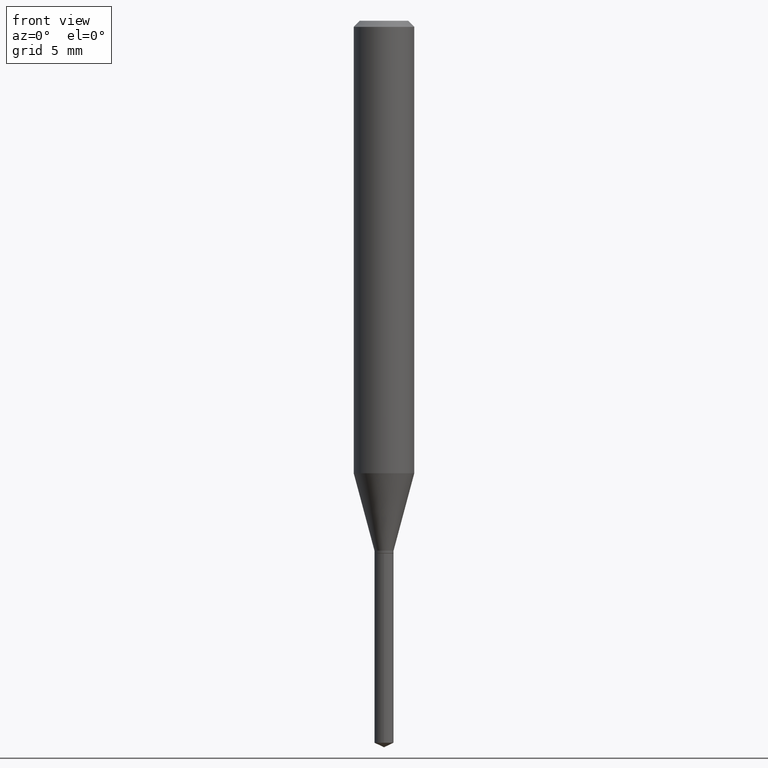
[diagram: clean part render]
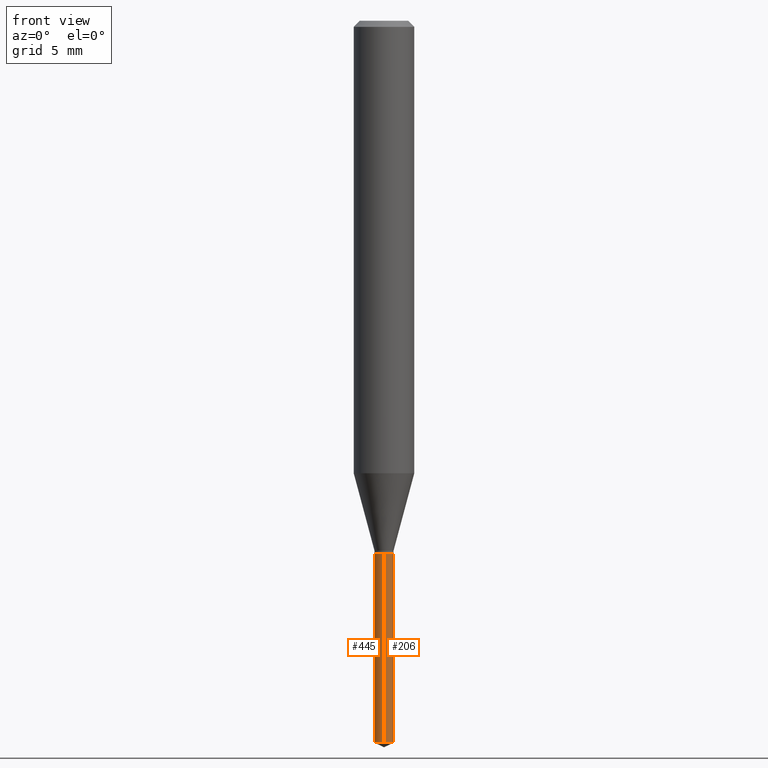
[diagram: same view with one multi-face feature highlighted, each face labeled with its STEP entity id]
A machine part, front view. The highlighted faces form ONE feature: a constant-radius fillet chain: 2 tangent blend faces with common blend radius 0.5004 mm. The faces share edges in the B-rep.
Their STEP definitions:
[1] entity #445 (Cylinder):
#2 = CIRCLE ( 'NONE', #381, 0.01969999999999999876 ) ;
#7 = VECTOR ( 'NONE', #107, 39.37007874015748143 ) ;
#12 = ORIENTED_EDGE ( 'NONE', *, *, #383, .F. ) ;
#25 = ORIENTED_EDGE ( 'NONE', *, *, #59, .T. ) ;
#45 = CARTESIAN_POINT ( 'NONE',  ( 1.399769189447762373E-16, 0.01969999999999615461, -1.100000000000000089 ) ) ;
#59 = EDGE_CURVE ( 'NONE', #86, #122, #2, .T. ) ;
#75 = CARTESIAN_POINT ( 'NONE',  ( 3.645711483492757860E-29, -5.205187031730015573E-15, -1.490813739134346783 ) ) ;
#86 = VERTEX_POINT ( 'NONE', #144 ) ;
#105 = DIRECTION ( 'NONE',  ( -6.982962677686265133E-15, -1.000000000000000000, 6.933624349401683764E-15 ) ) ;
#107 = DIRECTION ( 'NONE',  ( -2.445399690415121810E-29, 3.491580316559632610E-15, 1.000000000000000000 ) ) ;
#122 = VERTEX_POINT ( 'NONE', #275 ) ;
#142 = CARTESIAN_POINT ( 'NONE',  ( 2.690015686803650369E-29, -3.840629472727460101E-15, -1.100000000000000089 ) ) ;
#144 = CARTESIAN_POINT ( 'NONE',  ( 1.399769189447761140E-16, 0.01969999999999479459, -1.490813739134346783 ) ) ;
#149 = CARTESIAN_POINT ( 'NONE',  ( -1.375643647503925164E-16, -0.01970000000000383944, -1.099999999999999867 ) ) ;
#159 = VERTEX_POINT ( 'NONE', #45 ) ;
#175 = LINE ( 'NONE', #454, #7 ) ;
#176 = DIRECTION ( 'NONE',  ( -6.982962677686265133E-15, -1.000000000000000000, 6.933624349401683764E-15 ) ) ;
#187 = VECTOR ( 'NONE', #197, 39.37007874015748143 ) ;
#191 = EDGE_CURVE ( 'NONE', #122, #230, #355, .T. ) ;
#197 = DIRECTION ( 'NONE',  ( -2.445399690415121810E-29, 3.491580316559632610E-15, 1.000000000000000000 ) ) ;
#202 = CARTESIAN_POINT ( 'NONE',  ( -1.375643647503925164E-16, -0.01970000000000383944, -1.099999999999999867 ) ) ;
#205 = EDGE_LOOP ( 'NONE', ( #12, #25, #281, #366 ) ) ;
#214 = DIRECTION ( 'NONE',  ( -2.445399690415121530E-29, 3.491580316559632610E-15, 1.000000000000000000 ) ) ;
#230 = VERTEX_POINT ( 'NONE', #202 ) ;
#263 = AXIS2_PLACEMENT_3D ( 'NONE', #353, #490, #176 ) ;
#269 = EDGE_CURVE ( 'NONE', #159, #230, #347, .T. ) ;
#275 = CARTESIAN_POINT ( 'NONE',  ( -1.375643647503829514E-16, -0.01970000000000519946, -1.490813739134346783 ) ) ;
#281 = ORIENTED_EDGE ( 'NONE', *, *, #191, .T. ) ;
#301 = DIRECTION ( 'NONE',  ( -2.445399690415121530E-29, 3.491580316559632610E-15, 1.000000000000000000 ) ) ;
#347 = CIRCLE ( 'NONE', #263, 0.01969999999999999876 ) ;
#353 = CARTESIAN_POINT ( 'NONE',  ( 2.690015686803650369E-29, -3.840629472727460101E-15, -1.100000000000000089 ) ) ;
#355 = LINE ( 'NONE', #149, #187 ) ;
#366 = ORIENTED_EDGE ( 'NONE', *, *, #269, .F. ) ;
#381 = AXIS2_PLACEMENT_3D ( 'NONE', #75, #214, #417 ) ;
#383 = EDGE_CURVE ( 'NONE', #86, #159, #175, .T. ) ;
#400 = AXIS2_PLACEMENT_3D ( 'NONE', #142, #301, #105 ) ;
#415 = FACE_OUTER_BOUND ( 'NONE', #205, .T. ) ;
#417 = DIRECTION ( 'NONE',  ( -6.982962677686265133E-15, -1.000000000000000000, 0.000000000000000000 ) ) ;
#445 = ADVANCED_FACE ( 'NONE', ( #415 ), #457, .T. ) ;
#454 = CARTESIAN_POINT ( 'NONE',  ( 1.399769189447665984E-16, 0.01969999999999615461, -1.100000000000000089 ) ) ;
#457 = CYLINDRICAL_SURFACE ( 'NONE', #400, 0.01969999999999999876 ) ;
#490 = DIRECTION ( 'NONE',  ( -2.445399690415121530E-29, 3.491580316559632610E-15, 1.000000000000000000 ) ) ;
[2] entity #206 (Cylinder):
#3 = AXIS2_PLACEMENT_3D ( 'NONE', #334, #342, #488 ) ;
#7 = VECTOR ( 'NONE', #107, 39.37007874015748143 ) ;
#20 = DIRECTION ( 'NONE',  ( -6.982962677686265133E-15, -1.000000000000000000, 6.933624349401683764E-15 ) ) ;
#45 = CARTESIAN_POINT ( 'NONE',  ( 1.399769189447762373E-16, 0.01969999999999615461, -1.100000000000000089 ) ) ;
#53 = EDGE_CURVE ( 'NONE', #122, #86, #399, .T. ) ;
#72 = CIRCLE ( 'NONE', #3, 0.01969999999999999876 ) ;
#86 = VERTEX_POINT ( 'NONE', #144 ) ;
#107 = DIRECTION ( 'NONE',  ( -2.445399690415121810E-29, 3.491580316559632610E-15, 1.000000000000000000 ) ) ;
#122 = VERTEX_POINT ( 'NONE', #275 ) ;
#144 = CARTESIAN_POINT ( 'NONE',  ( 1.399769189447761140E-16, 0.01969999999999479459, -1.490813739134346783 ) ) ;
#149 = CARTESIAN_POINT ( 'NONE',  ( -1.375643647503925164E-16, -0.01970000000000383944, -1.099999999999999867 ) ) ;
#159 = VERTEX_POINT ( 'NONE', #45 ) ;
#171 = ORIENTED_EDGE ( 'NONE', *, *, #383, .T. ) ;
#175 = LINE ( 'NONE', #454, #7 ) ;
#187 = VECTOR ( 'NONE', #197, 39.37007874015748143 ) ;
#191 = EDGE_CURVE ( 'NONE', #122, #230, #355, .T. ) ;
#197 = DIRECTION ( 'NONE',  ( -2.445399690415121810E-29, 3.491580316559632610E-15, 1.000000000000000000 ) ) ;
#202 = CARTESIAN_POINT ( 'NONE',  ( -1.375643647503925164E-16, -0.01970000000000383944, -1.099999999999999867 ) ) ;
#206 = ADVANCED_FACE ( 'NONE', ( #394 ), #361, .T. ) ;
#209 = AXIS2_PLACEMENT_3D ( 'NONE', #248, #228, #302 ) ;
#228 = DIRECTION ( 'NONE',  ( -2.445399690415121530E-29, 3.491580316559632610E-15, 1.000000000000000000 ) ) ;
#230 = VERTEX_POINT ( 'NONE', #202 ) ;
#232 = AXIS2_PLACEMENT_3D ( 'NONE', #270, #463, #20 ) ;
#248 = CARTESIAN_POINT ( 'NONE',  ( 3.645711483492757860E-29, -5.205187031730015573E-15, -1.490813739134346783 ) ) ;
#257 = ORIENTED_EDGE ( 'NONE', *, *, #390, .F. ) ;
#270 = CARTESIAN_POINT ( 'NONE',  ( 2.690015686803650369E-29, -3.840629472727460101E-15, -1.100000000000000089 ) ) ;
#274 = ORIENTED_EDGE ( 'NONE', *, *, #191, .F. ) ;
#275 = CARTESIAN_POINT ( 'NONE',  ( -1.375643647503829514E-16, -0.01970000000000519946, -1.490813739134346783 ) ) ;
#302 = DIRECTION ( 'NONE',  ( -6.982962677686265133E-15, -1.000000000000000000, 0.000000000000000000 ) ) ;
#326 = EDGE_LOOP ( 'NONE', ( #475, #171, #257, #274 ) ) ;
#334 = CARTESIAN_POINT ( 'NONE',  ( 2.690015686803650369E-29, -3.840629472727460101E-15, -1.100000000000000089 ) ) ;
#342 = DIRECTION ( 'NONE',  ( -2.445399690415121530E-29, 3.491580316559632610E-15, 1.000000000000000000 ) ) ;
#355 = LINE ( 'NONE', #149, #187 ) ;
#361 = CYLINDRICAL_SURFACE ( 'NONE', #232, 0.01969999999999999876 ) ;
#383 = EDGE_CURVE ( 'NONE', #86, #159, #175, .T. ) ;
#390 = EDGE_CURVE ( 'NONE', #230, #159, #72, .T. ) ;
#394 = FACE_OUTER_BOUND ( 'NONE', #326, .T. ) ;
#399 = CIRCLE ( 'NONE', #209, 0.01969999999999999876 ) ;
#454 = CARTESIAN_POINT ( 'NONE',  ( 1.399769189447665984E-16, 0.01969999999999615461, -1.100000000000000089 ) ) ;
#463 = DIRECTION ( 'NONE',  ( -2.445399690415121530E-29, 3.491580316559632610E-15, 1.000000000000000000 ) ) ;
#475 = ORIENTED_EDGE ( 'NONE', *, *, #53, .T. ) ;
#488 = DIRECTION ( 'NONE',  ( -6.982962677686265133E-15, -1.000000000000000000, 6.933624349401683764E-15 ) ) ;